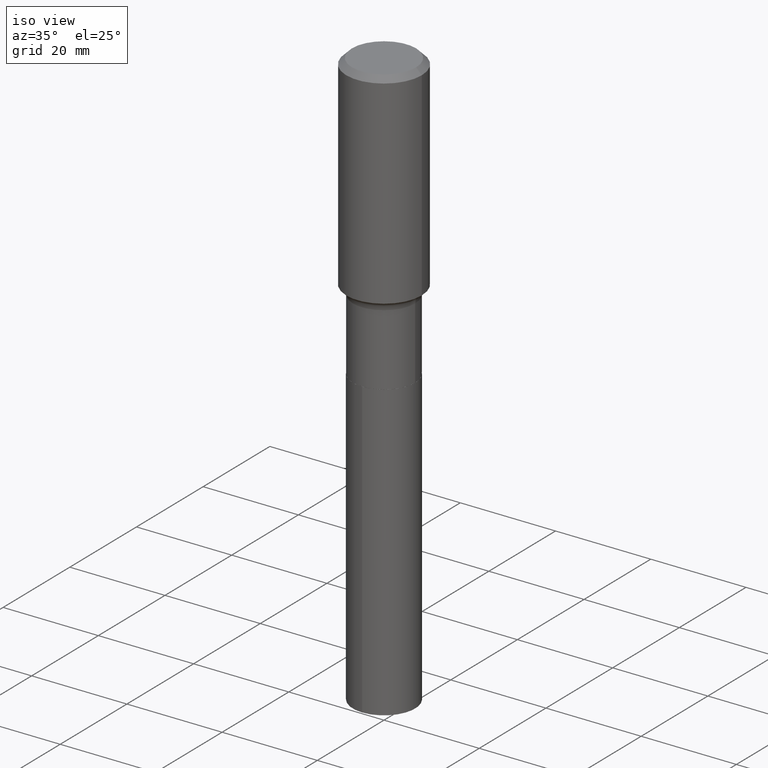
[diagram: clean part render]
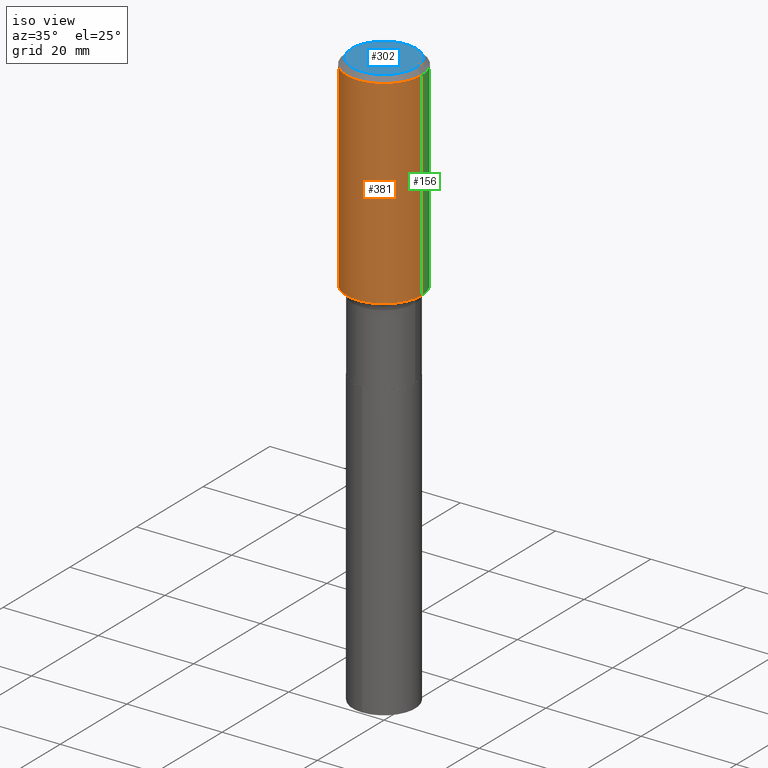
[diagram: same view with three faces highlighted in distinct colors, each labeled with its STEP entity id]
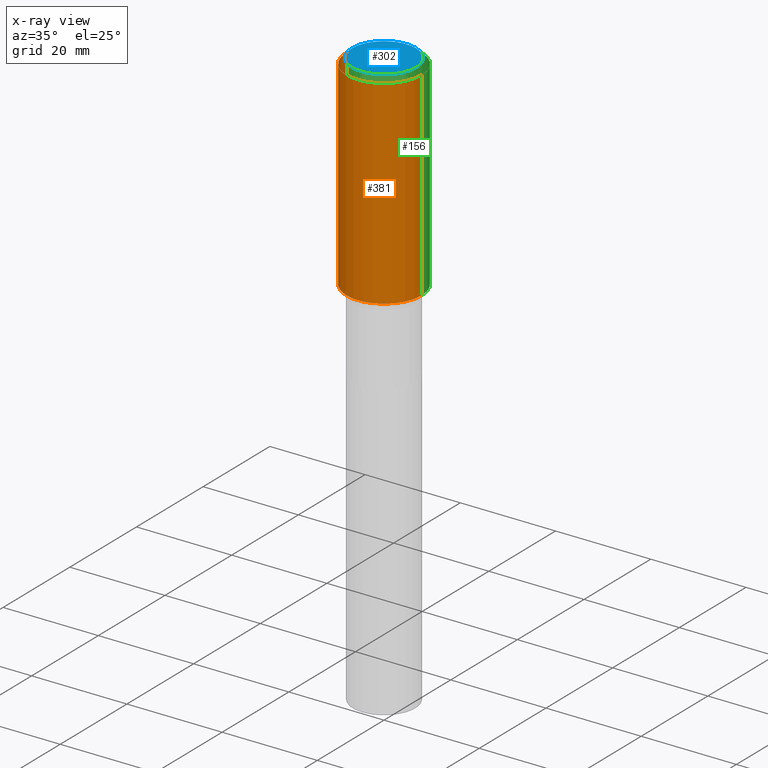
[diagram: x-ray of the same camera — body ghosted, the three highlighted faces saturated]
A machine part, iso view with three faces highlighted in distinct colors.
The next image is the same camera in x-ray (body ghosted, the three faces saturated) — at least one of them is partly hidden behind the body in this view.
Their STEP definitions:

[orange] entity #381 — the highlighted cylindrical surface (partial cylindrical patch) has radius 7.9375 mm, axis along (-0, 0, 1).
#24 = CARTESIAN_POINT ( 'NONE',  ( 0.000000000000000000, 0.000000000000000000, 0.000000000000000000 ) ) ;
#33 = CARTESIAN_POINT ( 'NONE',  ( -0.3125000000000002220, -3.687354639751988645E-15, -1.692061367556892515 ) ) ;
#38 = EDGE_CURVE ( 'NONE', #75, #402, #407, .T. ) ;
#44 = CARTESIAN_POINT ( 'NONE',  ( 1.146313502899290312E-30, -1.636631877582735524E-16, -0.04687500000000031225 ) ) ;
#60 = VERTEX_POINT ( 'NONE', #33 ) ;
#64 = CARTESIAN_POINT ( 'NONE',  ( 0.3125000000000000000, -2.345839024535231998E-15, -0.04687500000000031225 ) ) ;
#75 = VERTEX_POINT ( 'NONE', #78 ) ;
#78 = CARTESIAN_POINT ( 'NONE',  ( 0.3125000000000002220, -8.089976525779262440E-15, -1.692061367556892515 ) ) ;
#83 = EDGE_LOOP ( 'NONE', ( #96, #477, #317, #257 ) ) ;
#96 = ORIENTED_EDGE ( 'NONE', *, *, #147, .F. ) ;
#98 = DIRECTION ( 'NONE',  ( -2.445468806185136597E-29, 3.491481338843145583E-15, 1.000000000000000000 ) ) ;
#113 = AXIS2_PLACEMENT_3D ( 'NONE', #24, #137, #331 ) ;
#126 = CARTESIAN_POINT ( 'NONE',  ( 4.137883292511343296E-29, -5.907800689002302515E-15, -1.692061367556892515 ) ) ;
#137 = DIRECTION ( 'NONE',  ( -2.445468806185136597E-29, 3.491481338843145583E-15, 1.000000000000000000 ) ) ;
#147 = EDGE_CURVE ( 'NONE', #60, #176, #264, .T. ) ;
#149 = DIRECTION ( 'NONE',  ( -2.445468806185136877E-29, 3.491481338843145188E-15, 1.000000000000000000 ) ) ;
#176 = VERTEX_POINT ( 'NONE', #299 ) ;
#184 = EDGE_CURVE ( 'NONE', #60, #75, #470, .T. ) ;
#219 = AXIS2_PLACEMENT_3D ( 'NONE', #44, #98, #396 ) ;
#239 = CIRCLE ( 'NONE', #219, 0.3125000000000000000 ) ;
#257 = ORIENTED_EDGE ( 'NONE', *, *, #335, .F. ) ;
#264 = LINE ( 'NONE', #378, #269 ) ;
#269 = VECTOR ( 'NONE', #149, 39.37007874015748143 ) ;
#299 = CARTESIAN_POINT ( 'NONE',  ( -0.3125000000000000000, -8.152858891299743119E-16, -0.04687500000000031225 ) ) ;
#317 = ORIENTED_EDGE ( 'NONE', *, *, #38, .T. ) ;
#323 = DIRECTION ( 'NONE',  ( -2.445468806185136597E-29, 3.491481338843145583E-15, 1.000000000000000000 ) ) ;
#331 = DIRECTION ( 'NONE',  ( 1.000000000000000000, -6.982962677686266711E-15, 4.876176775795936353E-29 ) ) ;
#335 = EDGE_CURVE ( 'NONE', #176, #402, #239, .T. ) ;
#360 = CYLINDRICAL_SURFACE ( 'NONE', #113, 0.3125000000000000555 ) ;
#363 = FACE_OUTER_BOUND ( 'NONE', #83, .T. ) ;
#373 = CARTESIAN_POINT ( 'NONE',  ( 0.3125000000000000555, -2.182175836776958741E-15, 1.523805242436230356E-29 ) ) ;
#378 = CARTESIAN_POINT ( 'NONE',  ( -0.3125000000000000555, 2.220446049250313475E-15, -1.537167215704658512E-29 ) ) ;
#379 = VECTOR ( 'NONE', #413, 39.37007874015748143 ) ;
#381 = ADVANCED_FACE ( 'NONE', ( #363 ), #360, .T. ) ;
#384 = DIRECTION ( 'NONE',  ( 1.000000000000000000, -6.982962677686265133E-15, 0.000000000000000000 ) ) ;
#388 = AXIS2_PLACEMENT_3D ( 'NONE', #126, #323, #384 ) ;
#396 = DIRECTION ( 'NONE',  ( 1.000000000000000000, -6.982962677686266711E-15, 0.000000000000000000 ) ) ;
#402 = VERTEX_POINT ( 'NONE', #64 ) ;
#407 = LINE ( 'NONE', #373, #379 ) ;
#413 = DIRECTION ( 'NONE',  ( -2.445468806185136877E-29, 3.491481338843145188E-15, 1.000000000000000000 ) ) ;
#470 = CIRCLE ( 'NONE', #388, 0.3125000000000001665 ) ;
#477 = ORIENTED_EDGE ( 'NONE', *, *, #184, .T. ) ;

[blue] entity #302 — the highlighted planar face has unit normal (0, -0, -1).
#7 = DIRECTION ( 'NONE',  ( -2.445468806185136597E-29, 3.491481338843145583E-15, 1.000000000000000000 ) ) ;
#129 = DIRECTION ( 'NONE',  ( 2.438088387897960049E-29, -3.491481338843145188E-15, -1.000000000000000000 ) ) ;
#136 = ORIENTED_EDGE ( 'NONE', *, *, #405, .T. ) ;
#153 = CARTESIAN_POINT ( 'NONE',  ( -1.591006383764330162E-46, 2.271535455632767854E-32, 6.505936120470315685E-18 ) ) ;
#179 = DIRECTION ( 'NONE',  ( -2.445468806185136597E-29, 3.491481338843145583E-15, 1.000000000000000000 ) ) ;
#207 = CARTESIAN_POINT ( 'NONE',  ( -0.2656250000000000000, 1.936681055139549843E-15, 6.505936120457058354E-18 ) ) ;
#216 = CARTESIAN_POINT ( 'NONE',  ( -1.591006383764330162E-46, 2.271535455632767854E-32, 6.505936120470315685E-18 ) ) ;
#229 = VERTEX_POINT ( 'NONE', #434 ) ;
#231 = CIRCLE ( 'NONE', #266, 0.2656250000000000000 ) ;
#232 = ORIENTED_EDGE ( 'NONE', *, *, #261, .T. ) ;
#261 = EDGE_CURVE ( 'NONE', #229, #326, #339, .T. ) ;
#266 = AXIS2_PLACEMENT_3D ( 'NONE', #216, #179, #482 ) ;
#293 = AXIS2_PLACEMENT_3D ( 'NONE', #467, #129, #380 ) ;
#302 = ADVANCED_FACE ( 'NONE', ( #464 ), #319, .F. ) ;
#304 = DIRECTION ( 'NONE',  ( 1.000000000000000000, -6.982962677686268288E-15, 4.876286914311434227E-29 ) ) ;
#319 = PLANE ( 'NONE',  #293 ) ;
#326 = VERTEX_POINT ( 'NONE', #207 ) ;
#339 = CIRCLE ( 'NONE', #429, 0.2656250000000000000 ) ;
#380 = DIRECTION ( 'NONE',  ( -1.000000000000000000, 6.982962677686265922E-15, -4.876176775795935793E-29 ) ) ;
#395 = EDGE_LOOP ( 'NONE', ( #136, #232 ) ) ;
#405 = EDGE_CURVE ( 'NONE', #326, #229, #231, .T. ) ;
#429 = AXIS2_PLACEMENT_3D ( 'NONE', #153, #7, #304 ) ;
#434 = CARTESIAN_POINT ( 'NONE',  ( 0.2656250000000000000, -2.064944296359970168E-15, 6.505936120484021373E-18 ) ) ;
#464 = FACE_OUTER_BOUND ( 'NONE', #395, .T. ) ;
#467 = CARTESIAN_POINT ( 'NONE',  ( -7.955031918821650812E-47, 1.135767727816383927E-32, 3.252968060235157842E-18 ) ) ;
#482 = DIRECTION ( 'NONE',  ( 1.000000000000000000, -6.982962677686268288E-15, 4.876286914311434227E-29 ) ) ;

[green] entity #156 — the highlighted cylindrical surface (partial cylindrical patch) has radius 7.9375 mm, axis along (-0, 0, 1).
#12 = EDGE_LOOP ( 'NONE', ( #386, #332, #480, #204 ) ) ;
#28 = AXIS2_PLACEMENT_3D ( 'NONE', #100, #120, #163 ) ;
#30 = CARTESIAN_POINT ( 'NONE',  ( 0.000000000000000000, 0.000000000000000000, 0.000000000000000000 ) ) ;
#33 = CARTESIAN_POINT ( 'NONE',  ( -0.3125000000000002220, -3.687354639751988645E-15, -1.692061367556892515 ) ) ;
#38 = EDGE_CURVE ( 'NONE', #75, #402, #407, .T. ) ;
#40 = DIRECTION ( 'NONE',  ( -2.445468806185136597E-29, 3.491481338843145583E-15, 1.000000000000000000 ) ) ;
#60 = VERTEX_POINT ( 'NONE', #33 ) ;
#64 = CARTESIAN_POINT ( 'NONE',  ( 0.3125000000000000000, -2.345839024535231998E-15, -0.04687500000000031225 ) ) ;
#73 = CYLINDRICAL_SURFACE ( 'NONE', #191, 0.3125000000000000555 ) ;
#75 = VERTEX_POINT ( 'NONE', #78 ) ;
#78 = CARTESIAN_POINT ( 'NONE',  ( 0.3125000000000002220, -8.089976525779262440E-15, -1.692061367556892515 ) ) ;
#100 = CARTESIAN_POINT ( 'NONE',  ( 1.146313502899290312E-30, -1.636631877582735524E-16, -0.04687500000000031225 ) ) ;
#103 = CIRCLE ( 'NONE', #377, 0.3125000000000001665 ) ;
#120 = DIRECTION ( 'NONE',  ( -2.445468806185136597E-29, 3.491481338843145583E-15, 1.000000000000000000 ) ) ;
#147 = EDGE_CURVE ( 'NONE', #60, #176, #264, .T. ) ;
#149 = DIRECTION ( 'NONE',  ( -2.445468806185136877E-29, 3.491481338843145188E-15, 1.000000000000000000 ) ) ;
#156 = ADVANCED_FACE ( 'NONE', ( #369 ), #73, .T. ) ;
#159 = CARTESIAN_POINT ( 'NONE',  ( 4.137883292511343296E-29, -5.907800689002302515E-15, -1.692061367556892515 ) ) ;
#163 = DIRECTION ( 'NONE',  ( 1.000000000000000000, -6.982962677686266711E-15, 0.000000000000000000 ) ) ;
#176 = VERTEX_POINT ( 'NONE', #299 ) ;
#191 = AXIS2_PLACEMENT_3D ( 'NONE', #30, #40, #337 ) ;
#204 = ORIENTED_EDGE ( 'NONE', *, *, #38, .F. ) ;
#210 = CIRCLE ( 'NONE', #28, 0.3125000000000000000 ) ;
#264 = LINE ( 'NONE', #378, #269 ) ;
#269 = VECTOR ( 'NONE', #149, 39.37007874015748143 ) ;
#292 = DIRECTION ( 'NONE',  ( 1.000000000000000000, -6.982962677686265133E-15, 0.000000000000000000 ) ) ;
#299 = CARTESIAN_POINT ( 'NONE',  ( -0.3125000000000000000, -8.152858891299743119E-16, -0.04687500000000031225 ) ) ;
#312 = DIRECTION ( 'NONE',  ( -2.445468806185136597E-29, 3.491481338843145583E-15, 1.000000000000000000 ) ) ;
#332 = ORIENTED_EDGE ( 'NONE', *, *, #147, .T. ) ;
#337 = DIRECTION ( 'NONE',  ( 1.000000000000000000, -6.982962677686266711E-15, 4.876176775795936353E-29 ) ) ;
#369 = FACE_OUTER_BOUND ( 'NONE', #12, .T. ) ;
#370 = EDGE_CURVE ( 'NONE', #75, #60, #103, .T. ) ;
#373 = CARTESIAN_POINT ( 'NONE',  ( 0.3125000000000000555, -2.182175836776958741E-15, 1.523805242436230356E-29 ) ) ;
#377 = AXIS2_PLACEMENT_3D ( 'NONE', #159, #312, #292 ) ;
#378 = CARTESIAN_POINT ( 'NONE',  ( -0.3125000000000000555, 2.220446049250313475E-15, -1.537167215704658512E-29 ) ) ;
#379 = VECTOR ( 'NONE', #413, 39.37007874015748143 ) ;
#386 = ORIENTED_EDGE ( 'NONE', *, *, #370, .T. ) ;
#402 = VERTEX_POINT ( 'NONE', #64 ) ;
#407 = LINE ( 'NONE', #373, #379 ) ;
#413 = DIRECTION ( 'NONE',  ( -2.445468806185136877E-29, 3.491481338843145188E-15, 1.000000000000000000 ) ) ;
#441 = EDGE_CURVE ( 'NONE', #402, #176, #210, .T. ) ;
#480 = ORIENTED_EDGE ( 'NONE', *, *, #441, .F. ) ;